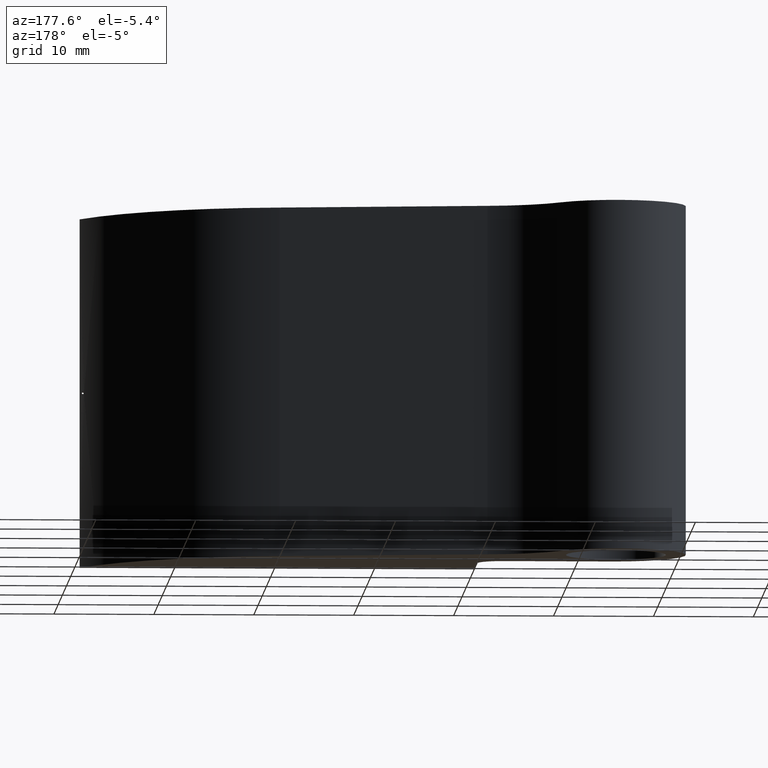
[diagram: clean part render]
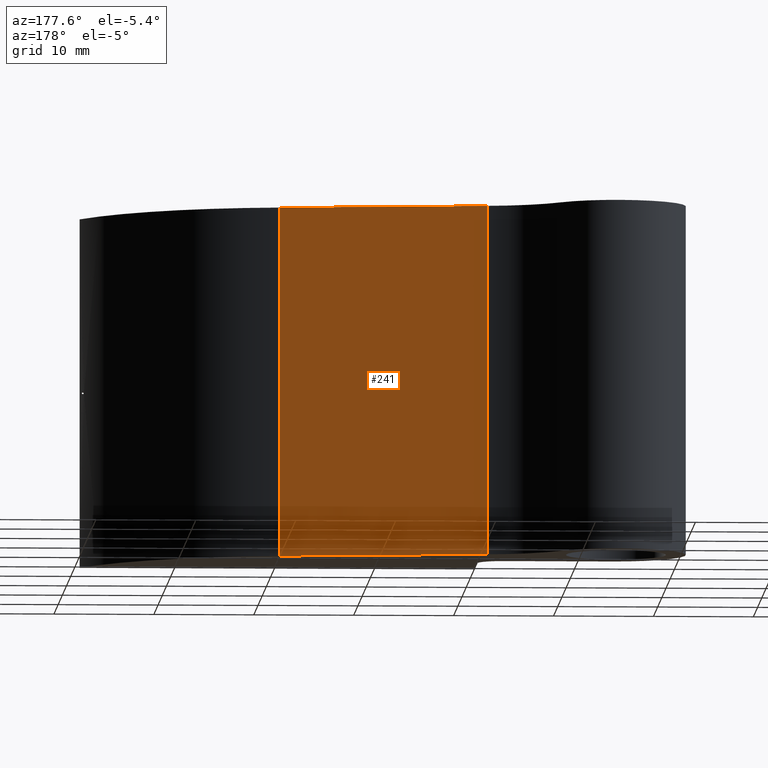
[diagram: same view with one face highlighted and labeled with its STEP entity id]
A machine part, auxiliary view. The second image highlights one B-rep face of the part: STEP entity #241.
In plain terms, the highlighted planar face has unit normal (0.1296, 0.9916, 0).
Its self-contained STEP definition (entity closure, byte-faithful):
#18=LINE('',#419,#34);
#26=LINE('',#442,#42);
#27=LINE('',#445,#43);
#28=LINE('',#446,#44);
#34=VECTOR('',#305,20.8640507154188);
#42=VECTOR('',#331,35.);
#43=VECTOR('',#334,20.8640507154188);
#44=VECTOR('',#335,35.);
#50=PLANE('',#269);
#85=FACE_OUTER_BOUND('',#103,.T.);
#103=EDGE_LOOP('',(#200,#201,#202,#203));
#124=VERTEX_POINT('',#416);
#125=VERTEX_POINT('',#418);
#131=VERTEX_POINT('',#440);
#132=VERTEX_POINT('',#444);
#146=EDGE_CURVE('',#124,#125,#18,.T.);
#158=EDGE_CURVE('',#131,#124,#26,.T.);
#159=EDGE_CURVE('',#132,#131,#27,.T.);
#160=EDGE_CURVE('',#132,#125,#28,.T.);
#200=ORIENTED_EDGE('',*,*,#158,.F.);
#201=ORIENTED_EDGE('',*,*,#159,.F.);
#202=ORIENTED_EDGE('',*,*,#160,.T.);
#203=ORIENTED_EDGE('',*,*,#146,.F.);
#241=ADVANCED_FACE('',(#85),#50,.T.);
#269=AXIS2_PLACEMENT_3D('',#443,#332,#333);
#305=DIRECTION('',(0.991568697709726,-0.129582088740067,0.));
#331=DIRECTION('',(0.,0.,-1.));
#332=DIRECTION('center_axis',(0.129582088740067,0.991568697709726,0.));
#333=DIRECTION('ref_axis',(-0.991568697709726,0.129582088740067,0.));
#334=DIRECTION('',(-0.991568697709726,0.129582088740067,0.));
#335=DIRECTION('',(0.,0.,-1.));
#416=CARTESIAN_POINT('',(-21.1475886524639,13.5865154336048,-17.5));
#418=CARTESIAN_POINT('',(-0.459449055626422,10.8829081623221,-17.5));
#419=CARTESIAN_POINT('',(-21.1475886524639,13.5865154336048,-17.5));
#440=CARTESIAN_POINT('',(-21.1475886524639,13.5865154336048,17.5));
#442=CARTESIAN_POINT('',(-21.1475886524639,13.5865154336048,0.));
#443=CARTESIAN_POINT('Origin',(-0.459449055626422,10.8829081623221,0.));
#444=CARTESIAN_POINT('',(-0.459449055626422,10.8829081623221,17.5));
#445=CARTESIAN_POINT('',(-21.1475886524639,13.5865154336048,17.5));
#446=CARTESIAN_POINT('',(-0.459449055626421,10.8829081623221,0.));